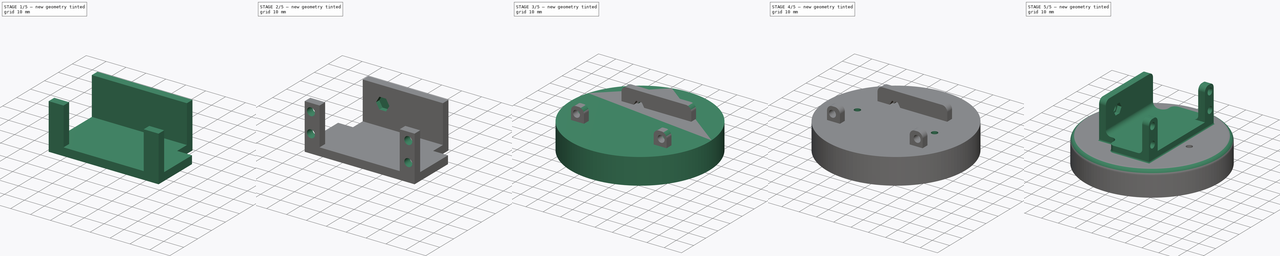
[diagram: build sequence overview — one tinted view per stage of 5, left to right]
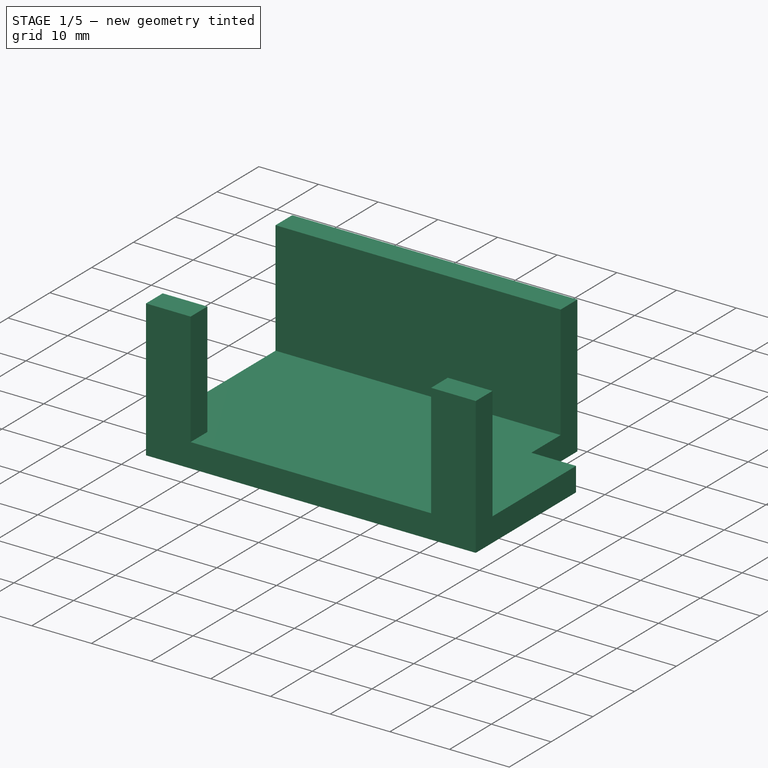
[diagram: stage 1 of 5 — iso view after this stage's code; geometry added in this stage tinted green]
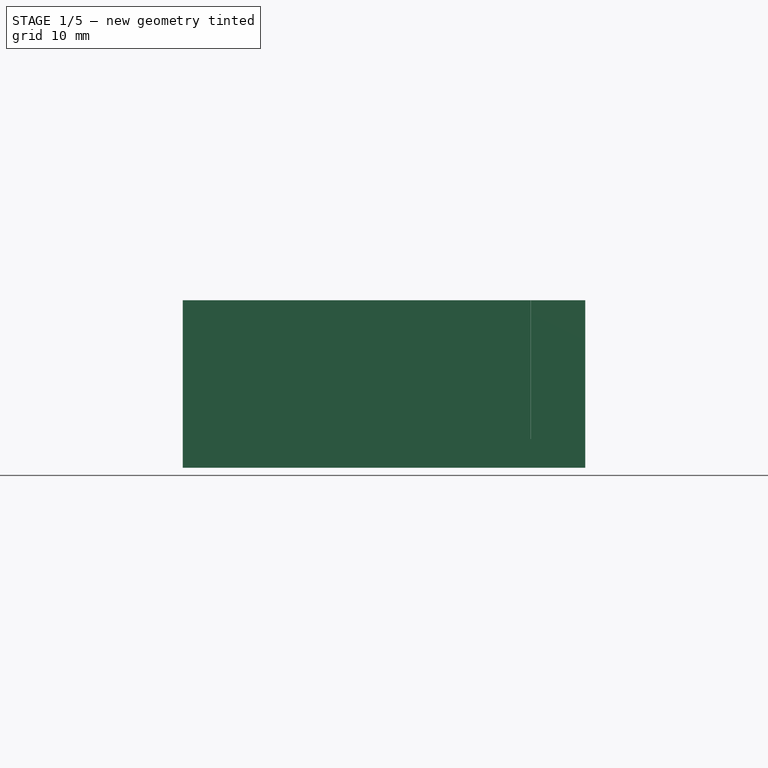
[diagram: stage 1 of 5 — front view after this stage's code; geometry added in this stage tinted green]
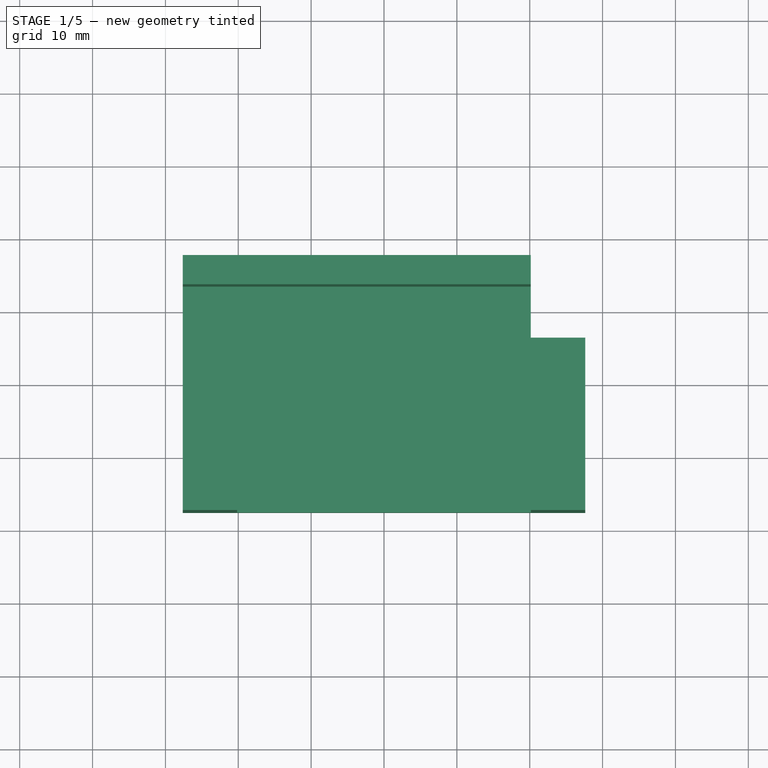
[diagram: stage 1 of 5 — top view after this stage's code; geometry added in this stage tinted green]
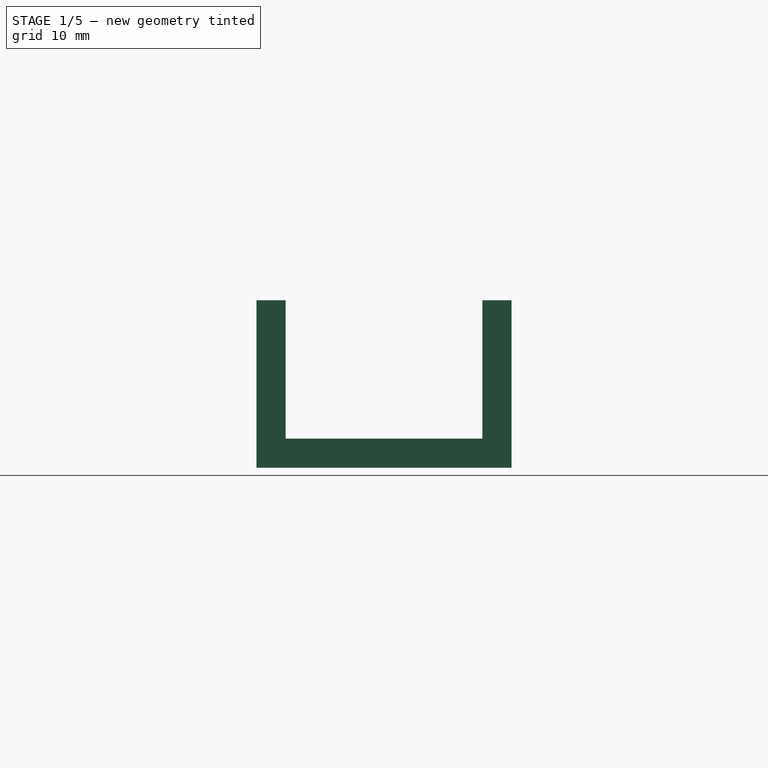
[diagram: stage 1 of 5 — right view after this stage's code; geometry added in this stage tinted green]
FCSTD DOCUMENT  (FreeCAD 0.17R13519 (Git))
Label: forbase
License: CreativeCommons Attribution-ShareAlike
LicenseURL: http://creativecommons.org/licenses/by-sa/4.0/
objects: Sketcher::SketchObject×10, PartDesign::Pocket×8, PartDesign::Fillet×4, PartDesign::Pad×2, PartDesign::Body×2, PartDesign::Mirrored×1, PartDesign::Boolean×1
note: 38 computed .brp shape members not serialized (recipe doc carries the construction recipe); baked Part::Feature solids carry a one-line shape summary decoded from their .brp

FEATURE [Sketcher::SketchObject] Sketch005
  MapMode = 5
  Placement = pos=(0,0,0) rot=(0.57735,0.57735,0.57735;2.0944rad)
  Support = -> [YZ_Plane001]
  sketch-geometry (8):
    g0: LineSegment StartX=-17.5 StartY=23 StartZ=0 EndX=-17.5 EndY=0 EndZ=0
    g1: LineSegment StartX=-17.5 StartY=0 StartZ=0 EndX=17.5 EndY=0 EndZ=0
    g2: LineSegment StartX=17.5 StartY=0 StartZ=0 EndX=17.5 EndY=23 EndZ=0
    g3: LineSegment StartX=17.5 StartY=23 StartZ=0 EndX=13.5 EndY=23 EndZ=0
    g4: LineSegment StartX=13.5 StartY=23 StartZ=0 EndX=13.5 EndY=4 EndZ=0
    g5: LineSegment StartX=13.5 StartY=4 StartZ=0 EndX=-13.5 EndY=4 EndZ=0
    g6: LineSegment StartX=-13.5 StartY=4 StartZ=0 EndX=-13.5 EndY=23 EndZ=0
    g7: LineSegment StartX=-13.5 StartY=23 StartZ=0 EndX=-17.5 EndY=23 EndZ=0
  constraints (24):
    c: PointOnObject(g0,g-1)
    c: Vertical(g0)
    c: Coincident(g0,g1)
    c: PointOnObject(g1,g-1)
    c: Coincident(g1,g2)
    c: Vertical(g2)
    c: Coincident(g2,g3)
    c: Horizontal(g3)
    c: Coincident(g3,g4)
    c: Vertical(g4)
    c: Coincident(g4,g5)
    c: Horizontal(g5)
    c: Coincident(g5,g6)
    c: Vertical(g6)
    c: Coincident(g6,g7)
    c: Coincident(g7,g0)
    c: Horizontal(g7)
    c: Symmetric(g0,g1,g-2)
    c: Equal(g7,g3)
    c: DistanceX(g7,g7) = 4
    c: DistanceY(g0,g5) = 4
    c: DistanceX(g1,g1) = 35
    c: Equal(g0,g2)
    c: DistanceY(g0,g0) = 23
FEATURE [PartDesign::Pad] Pad001
  Length = 55.25
  Length2 = 100
  Midplane = true
  Placement = pos=(0,0,0) rot=(0.57735,0.57735,0.57735;2.0944rad)
  Profile = -> Sketch005
  Type = 0
FEATURE [Sketcher::SketchObject] Sketch006
  ExternalGeometry = -> [Pad001]
  MapMode = 5
  Placement = pos=(0,0,23) rot=(0,0,-1;1.5708rad)
  Support = -> [Pad001]
  sketch-geometry (4):
    g0: LineSegment StartX=13.5 StartY=20.15 StartZ=0 EndX=17.5 EndY=20.15 EndZ=0
    g1: LineSegment StartX=17.5 StartY=20.15 StartZ=0 EndX=17.5 EndY=-20.15 EndZ=0
    g2: LineSegment StartX=17.5 StartY=-20.15 StartZ=0 EndX=13.5 EndY=-20.15 EndZ=0
    g3: LineSegment StartX=13.5 StartY=-20.15 StartZ=0 EndX=13.5 EndY=20.15 EndZ=0
  constraints (12):
    c: Coincident(g0,g1)
    c: Coincident(g1,g2)
    c: Coincident(g2,g3)
    c: Coincident(g3,g0)
    c: Horizontal(g0)
    c: Horizontal(g2)
    c: Vertical(g1)
    c: Vertical(g3)
    c: PointOnObject(g0,g-4)
    c: PointOnObject(g1,g-3)
    c: Symmetric(g0,g1,g-1)
    c: DistanceY(g1,g1) = 40.3
FEATURE [PartDesign::Pocket] Pocket003
  BaseFeature = -> Pad001
  Length = 0
  Length2 = 100
  Placement = pos=(0,0,0) rot=(0.57735,0.57735,0.57735;2.0944rad)
  Profile = -> Sketch006
  Type = 3
  UpToFace = -> Pad001 [Face6]
FEATURE [Sketcher::SketchObject] Sketch007
  ExternalGeometry = -> [Pocket003]
  MapMode = 5
  Placement = pos=(0,0,23) rot=(0,0,-1;1.5708rad)
  Support = -> [Pocket003]
  sketch-geometry (4):
    g0: LineSegment StartX=-17.5 StartY=27.625 StartZ=0 EndX=-6.5 EndY=27.625 EndZ=0
    g1: LineSegment StartX=-6.5 StartY=27.625 StartZ=0 EndX=-6.5 EndY=20.145 EndZ=0
    g2: LineSegment StartX=-6.5 StartY=20.145 StartZ=0 EndX=-17.5 EndY=20.145 EndZ=0
    g3: LineSegment StartX=-17.5 StartY=20.145 StartZ=0 EndX=-17.5 EndY=27.625 EndZ=0
  constraints (11):
    c: Coincident(g0,g1)
    c: Coincident(g1,g2)
    c: Coincident(g2,g3)
    c: Coincident(g3,g0)
    c: Horizontal(g0)
    c: Horizontal(g2)
    c: Vertical(g1)
    c: Vertical(g3)
    c: Coincident(g0,g-4)
    c: DistanceY(g3,g3) = 7.48
    c: DistanceX(g0,g0) = 11
FEATURE [PartDesign::Pocket] Pocket004
  BaseFeature = -> Pocket003
  Length = 5
  Length2 = 100
  Placement = pos=(0,0,0) rot=(0.57735,0.57735,0.57735;2.0944rad)
  Profile = -> Sketch007
  Type = 1
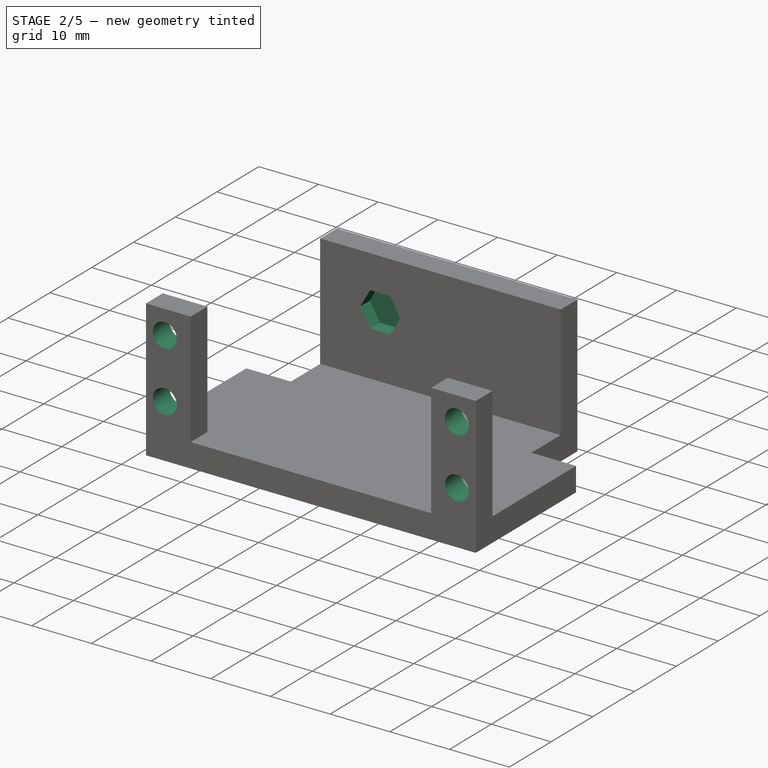
[diagram: stage 2 of 5 — iso view after this stage's code; geometry added in this stage tinted green]
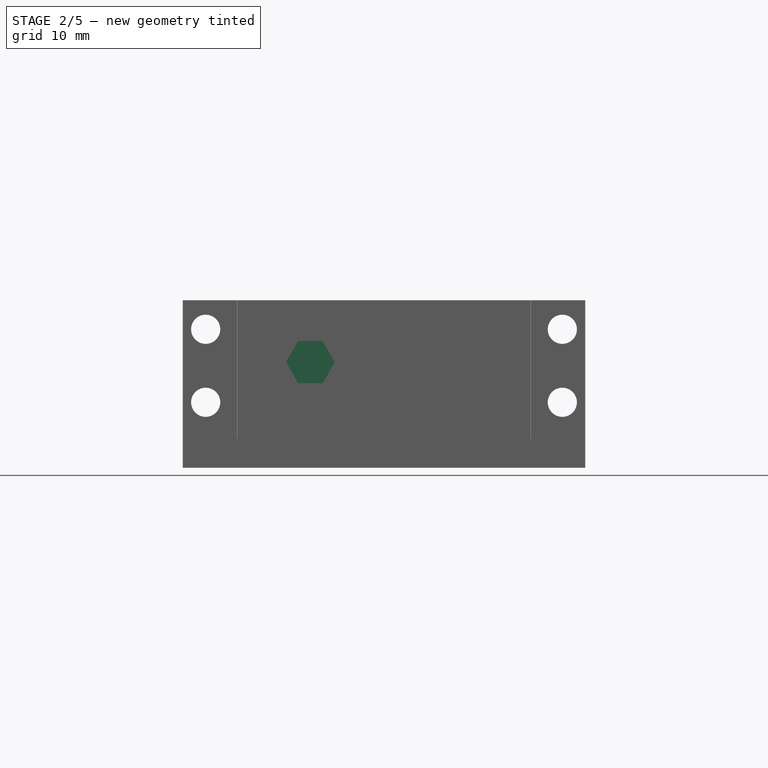
[diagram: stage 2 of 5 — front view after this stage's code; geometry added in this stage tinted green]
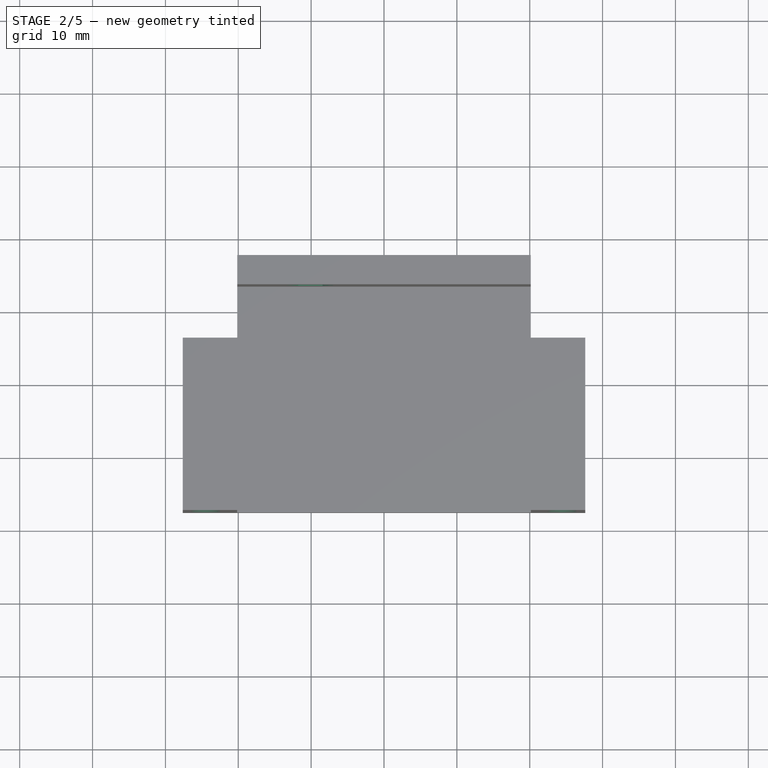
[diagram: stage 2 of 5 — top view after this stage's code; geometry added in this stage tinted green]
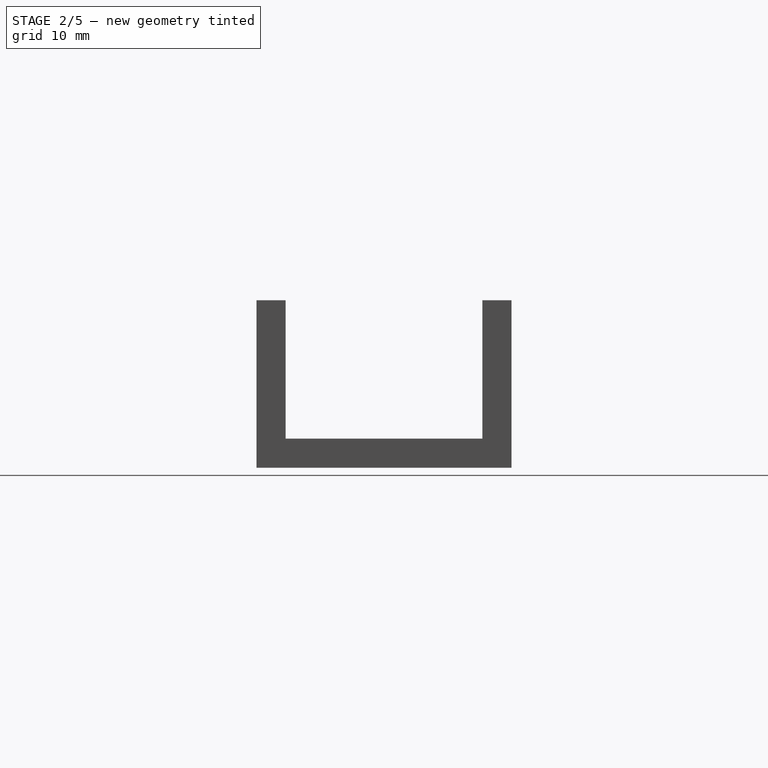
[diagram: stage 2 of 5 — right view after this stage's code; geometry added in this stage tinted green]
FEATURE [PartDesign::Mirrored] Mirrored
  BaseFeature = -> Pocket004
  MirrorPlane = -> YZ_Plane001
  Originals = -> [Pocket004]
  Placement = pos=(0,0,0) rot=(0.57735,0.57735,0.57735;2.0944rad)
FEATURE [Sketcher::SketchObject] Sketch008
  ExternalGeometry = -> [Mirrored]
  MapMode = 5
  Placement = pos=(0,-17.5,0) rot=(-0.57735,-0.57735,0.57735;4.18879rad)
  Support = -> [Mirrored]
  sketch-geometry (5):
    g0: LineSegment [constr] StartX=-23 StartY=-24.475 StartZ=0 EndX=-0.01045 EndY=-24.475 EndZ=0
    g1: Circle CenterX=-19.01 CenterY=-24.475 CenterZ=0 NormalX=0 NormalY=0 NormalZ=1 AngleXU=0 Radius=2
    g2: Circle CenterX=-8.99 CenterY=-24.475 CenterZ=0 NormalX=0 NormalY=0 NormalZ=1 AngleXU=0 Radius=2
    g3: Circle CenterX=-8.99 CenterY=24.475 CenterZ=0 NormalX=0 NormalY=0 NormalZ=1 AngleXU=0 Radius=2
    g4: Circle CenterX=-19.01 CenterY=24.475 CenterZ=0 NormalX=0 NormalY=0 NormalZ=1 AngleXU=0 Radius=2
  constraints (11):
    c: Horizontal(g0)
    c: DistanceY(g-3,g0) = 3.15
    c: PointOnObject(g1,g0)
    c: PointOnObject(g2,g0)
    c: Equal(g1,g2)
    c: Radius(g1) = 2
    c: DistanceX(g-4,g1) = 3.99
    c: DistanceX(g1,g2) = 10.02
    c: PointOnObject(g0,g-3)
    c: Equal(g4,g3)
    c: Radius(g4) = 2
FEATURE [PartDesign::Pocket] Pocket005
  BaseFeature = -> Mirrored
  Length = 5
  Length2 = 100
  Placement = pos=(0,0,0) rot=(0.57735,0.57735,0.57735;2.0944rad)
  Profile = -> Sketch008
  Type = 0
FEATURE [Sketcher::SketchObject] Sketch009
  ExternalGeometry = -> [Pocket005]
  MapMode = 5
  Placement = pos=(0,13.5,0) rot=(-0.57735,-0.57735,0.57735;4.18879rad)
  Support = -> [Pocket005]
  sketch-geometry (7):
    g0: LineSegment StartX=-11.5988 StartY=-11.77 StartZ=0 EndX=-11.5988 EndY=-8.42 EndZ=0
    g1: LineSegment StartX=-11.5988 StartY=-8.42 StartZ=0 EndX=-14.5 EndY=-6.745 EndZ=0
    g2: LineSegment StartX=-14.5 StartY=-6.745 StartZ=0 EndX=-17.4012 EndY=-8.42 EndZ=0
    g3: LineSegment StartX=-17.4012 StartY=-8.42 StartZ=0 EndX=-17.4012 EndY=-11.77 EndZ=0
    g4: LineSegment StartX=-17.4012 StartY=-11.77 StartZ=0 EndX=-14.5 EndY=-13.445 EndZ=0
    g5: LineSegment StartX=-14.5 StartY=-13.445 StartZ=0 EndX=-11.5988 EndY=-11.77 EndZ=0
    g6: Circle [constr] CenterX=-14.5 CenterY=-10.095 CenterZ=0 NormalX=0 NormalY=0 NormalZ=1 AngleXU=0 Radius=3.35
  constraints (17):
    c: Coincident(g0,g1)
    c: Coincident(g1,g2)
    c: Coincident(g2,g3)
    c: Coincident(g3,g4)
    c: Coincident(g4,g5)
    c: Coincident(g5,g0)
    c: Equal(g0, g1-g5) x5
    c: PointOnObject(g0,g6)
    c: PointOnObject(g1,g6)
    c: PointOnObject(g2,g6)
    c: PointOnObject(g3,g6)
    c: PointOnObject(g4,g6)
    c: PointOnObject(g5,g6)
    c: DistanceY(g-4,g6) = 10.05
    c: DistanceX(g-4,g6) = 8.5
    c: Parallel(g3,g-4)
    c: DistanceY(g4,g1) = 6.7
FEATURE [PartDesign::Pocket] Pocket006
  BaseFeature = -> Pocket005
  Length = 2.3
  Length2 = 100
  Placement = pos=(0,0,0) rot=(0.57735,0.57735,0.57735;2.0944rad)
  Profile = -> Sketch009
  Type = 0
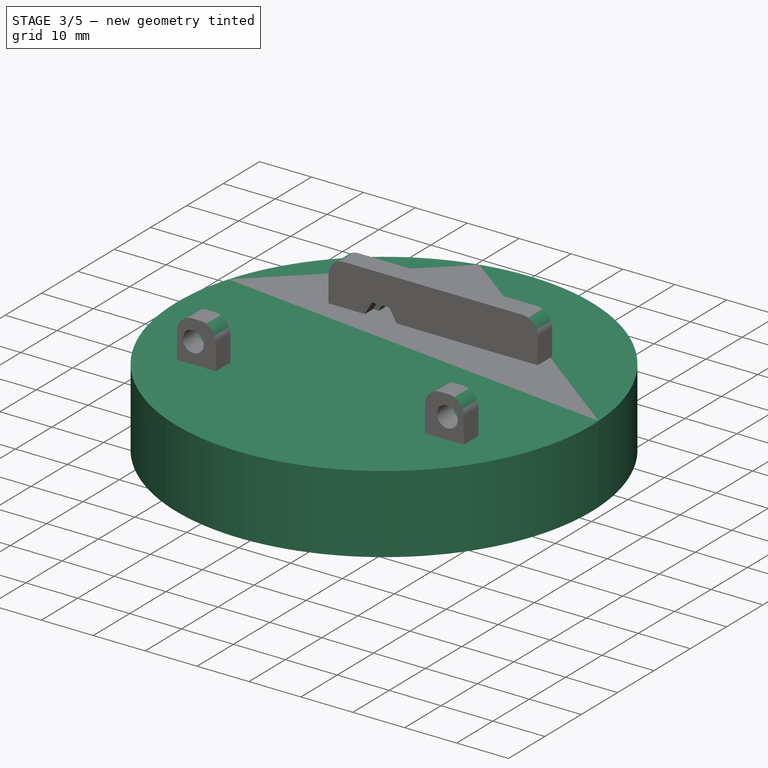
[diagram: stage 3 of 5 — iso view after this stage's code; geometry added in this stage tinted green]
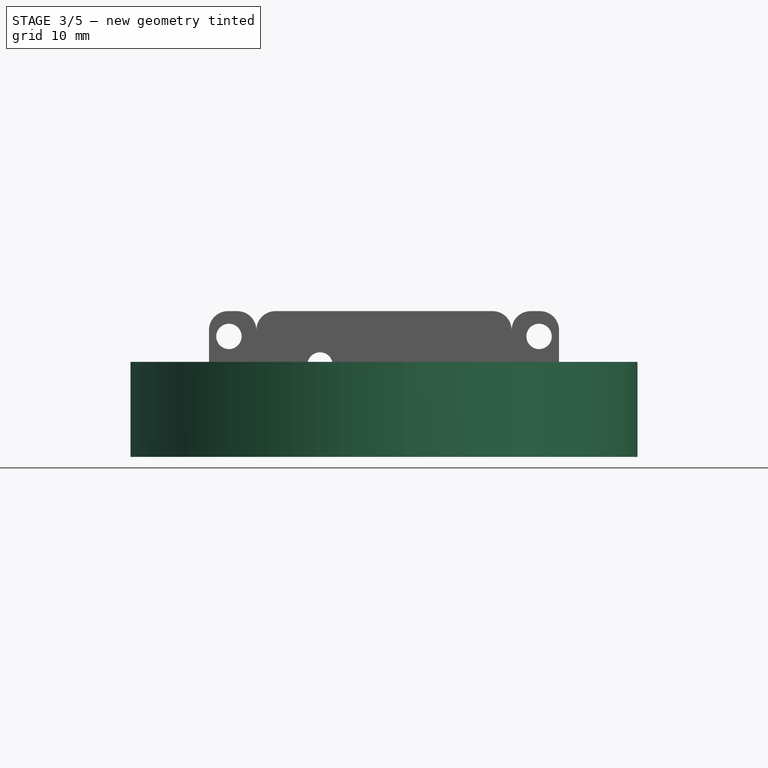
[diagram: stage 3 of 5 — front view after this stage's code; geometry added in this stage tinted green]
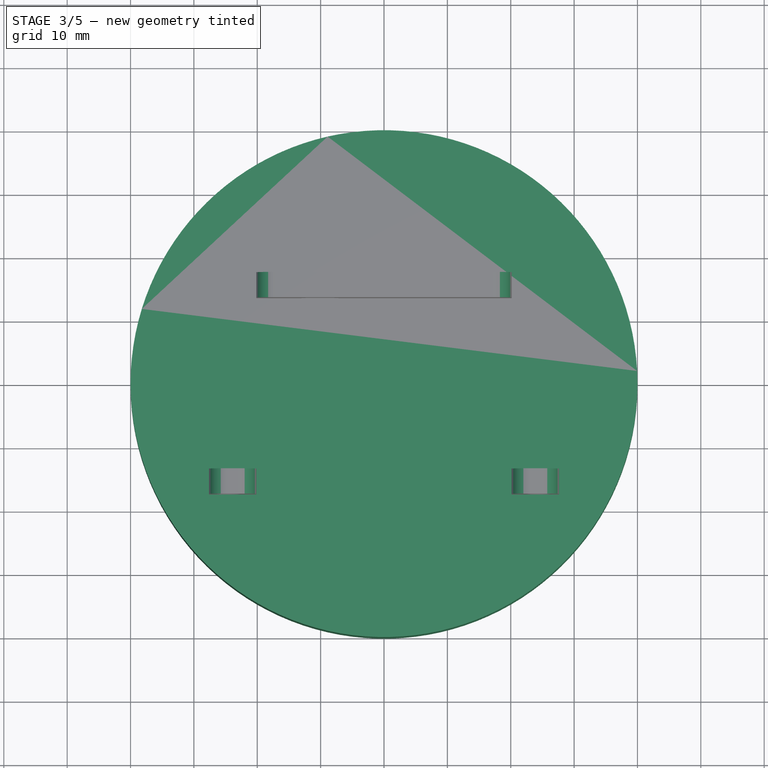
[diagram: stage 3 of 5 — top view after this stage's code; geometry added in this stage tinted green]
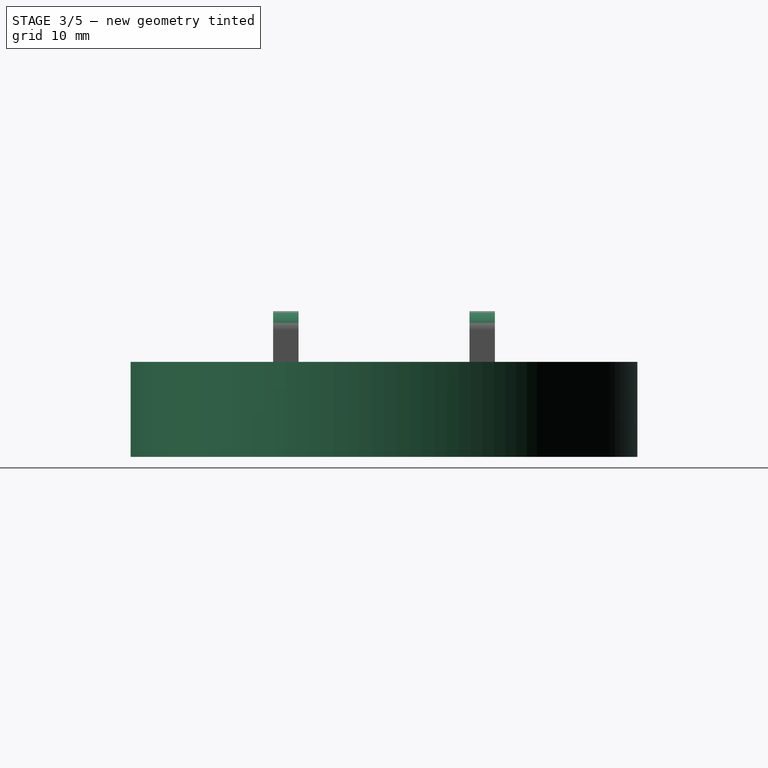
[diagram: stage 3 of 5 — right view after this stage's code; geometry added in this stage tinted green]
FEATURE [Sketcher::SketchObject] Sketch
  MapMode = 5
  Support = -> [XY_Plane]
  sketch-geometry (1):
    g0: Circle CenterX=0 CenterY=0 CenterZ=0 NormalX=0 NormalY=0 NormalZ=1 AngleXU=0 Radius=40
  constraints (2):
    c: Coincident(g0,g-1)
    c: Radius(g0) = 40
FEATURE [PartDesign::Pad] Pad
  Length = 15
  Length2 = 100
  Profile = -> Sketch
  Type = 0
FEATURE [Sketcher::SketchObject] Sketch010
  ExternalGeometry = -> [Pocket006]
  MapMode = 5
  Placement = pos=(0,15.8,0) rot=(-0.57735,-0.57735,0.57735;4.18879rad)
  Support = -> [Pocket006]
  sketch-geometry (1):
    g0: Circle CenterX=-14.5 CenterY=-10.095 CenterZ=0 NormalX=0 NormalY=0 NormalZ=1 AngleXU=0 Radius=2
  constraints (3):
    c: DistanceX(g-4,g0) = 8.5
    c: DistanceY(g-4,g0) = 10.05
    c: Radius(g0) = 2
FEATURE [PartDesign::Pocket] Pocket007
  BaseFeature = -> Pocket006
  Length = 5
  Length2 = 100
  Placement = pos=(0,0,0) rot=(0.57735,0.57735,0.57735;2.0944rad)
  Profile = -> Sketch010
  Type = 2
FEATURE [PartDesign::Fillet] Fillet001
  Base = -> Pocket007 [Edge18,Edge13,Edge34,Edge28,Edge60,Edge31,Edge54,Edge16,Edge52,Edge61,Edge49]
  BaseFeature = -> Pocket007
  Placement = pos=(0,0,0) rot=(0.57735,0.57735,0.57735;2.0944rad)
  Radius = 3
FEATURE [PartDesign::Fillet] Fillet002
  Base = -> Fillet001 [Edge61,Edge65]
  BaseFeature = -> Fillet001
  Placement = pos=(0,0,0) rot=(0.57735,0.57735,0.57735;2.0944rad)
  Radius = 2.5
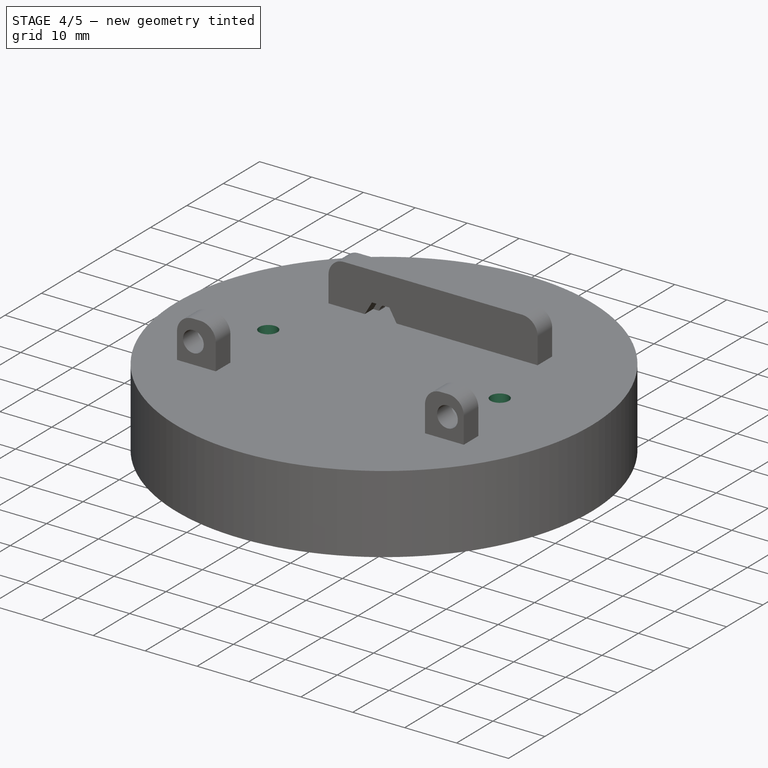
[diagram: stage 4 of 5 — iso view after this stage's code; geometry added in this stage tinted green]
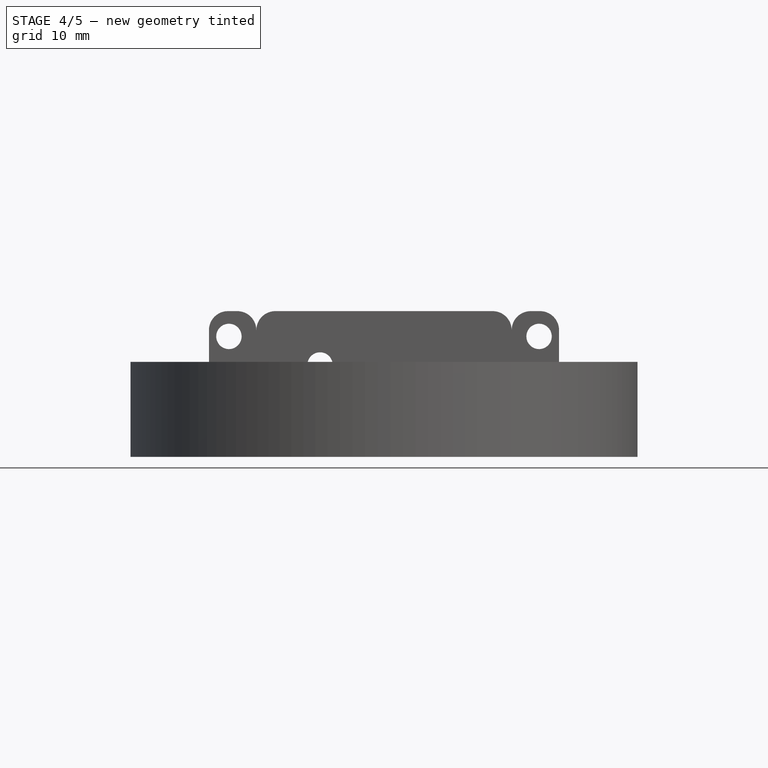
[diagram: stage 4 of 5 — front view after this stage's code; geometry added in this stage tinted green]
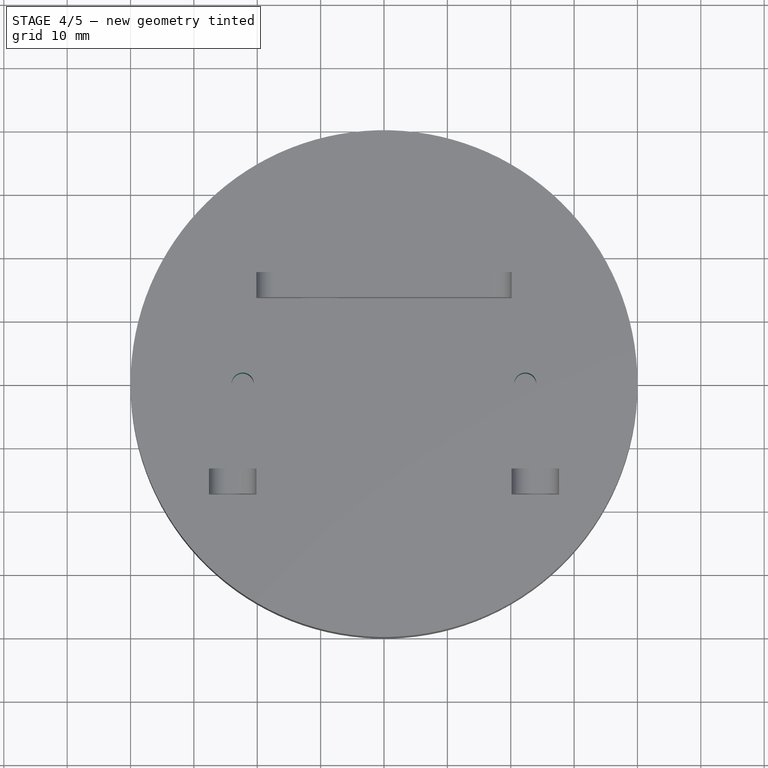
[diagram: stage 4 of 5 — top view after this stage's code; geometry added in this stage tinted green]
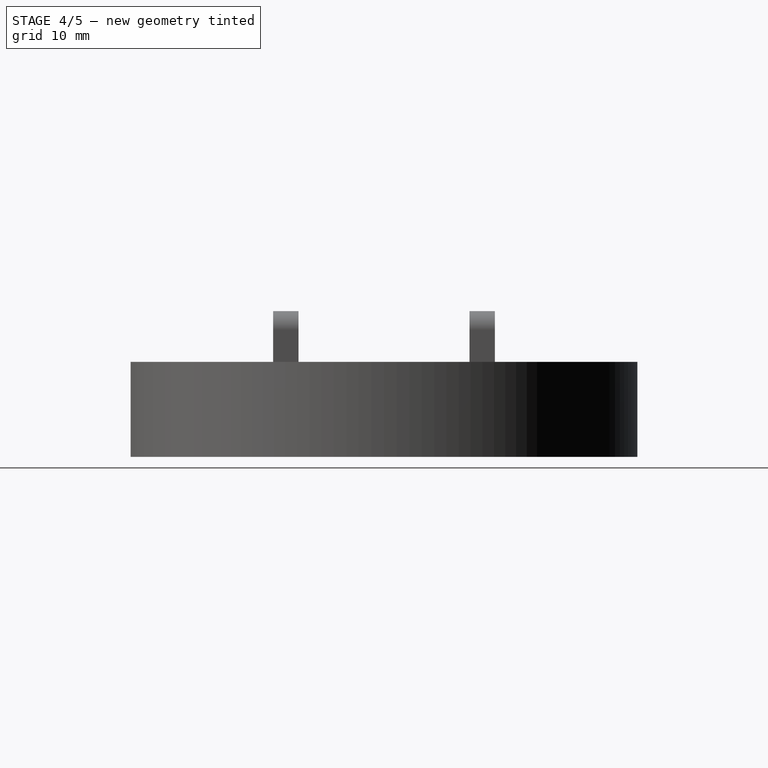
[diagram: stage 4 of 5 — right view after this stage's code; geometry added in this stage tinted green]
FEATURE [Sketcher::SketchObject] Sketch001
  MapMode = 5
  Placement = pos=(0,0,0) rot=(1,0,0;3.14159rad)
  Support = -> [Pad]
  sketch-geometry (7):
    g0: LineSegment StartX=2.875 StartY=-4.97965 StartZ=0 EndX=5.75 EndY=0 EndZ=0
    g1: LineSegment StartX=5.75 StartY=0 StartZ=0 EndX=2.875 EndY=4.97965 EndZ=0
    g2: LineSegment StartX=2.875 StartY=4.97965 StartZ=0 EndX=-2.875 EndY=4.97965 EndZ=0
    g3: LineSegment StartX=-2.875 StartY=4.97965 StartZ=0 EndX=-5.75 EndY=0 EndZ=0
    g4: LineSegment StartX=-5.75 StartY=0 StartZ=0 EndX=-2.875 EndY=-4.97965 EndZ=0
    g5: LineSegment StartX=-2.875 StartY=-4.97965 StartZ=0 EndX=2.875 EndY=-4.97965 EndZ=0
    g6: Circle [constr] CenterX=0 CenterY=0 CenterZ=0 NormalX=0 NormalY=0 NormalZ=1 AngleXU=0 Radius=5.75
  constraints (16):
    c: Coincident(g0,g1)
    c: Coincident(g1,g2)
    c: Coincident(g2,g3)
    c: Coincident(g3,g4)
    c: Coincident(g4,g5)
    c: Coincident(g5,g0)
    c: Equal(g0, g1-g5) x5
    c: PointOnObject(g0,g6)
    c: PointOnObject(g1,g6)
    c: PointOnObject(g2,g6)
    c: PointOnObject(g3,g6)
    c: PointOnObject(g4,g6)
    c: PointOnObject(g5,g6)
    c: Coincident(g6,g-1)
    c: PointOnObject(g3,g-1)
    c: DistanceX(g-1,g0) = 5.75
FEATURE [PartDesign::Pocket] Pocket
  BaseFeature = -> Pad
  Length = 3.5
  Length2 = 100
  Profile = -> Sketch001
  Type = 0
FEATURE [Sketcher::SketchObject] Sketch002
  MapMode = 5
  Placement = pos=(0,0,3.5) rot=(1,0,0;3.14159rad)
  Support = -> [Pocket]
  sketch-geometry (1):
    g0: Circle CenterX=0 CenterY=0 CenterZ=0 NormalX=0 NormalY=0 NormalZ=1 AngleXU=0 Radius=3.25
  constraints (2):
    c: Coincident(g0,g-1)
    c: Radius(g0) = 3.25
FEATURE [PartDesign::Pocket] Pocket001
  BaseFeature = -> Pocket
  Length = 8.5
  Length2 = 100
  Profile = -> Sketch002
  Type = 0
FEATURE [Sketcher::SketchObject] Sketch003
  MapMode = 5
  Placement = pos=(0,0,15) rot=(0,0,1;0rad)
  Support = -> [Pocket001]
  sketch-geometry (2):
    g0: Circle CenterX=22.3 CenterY=0 CenterZ=0 NormalX=0 NormalY=0 NormalZ=1 AngleXU=0 Radius=1.75
    g1: Circle CenterX=-22.3 CenterY=0 CenterZ=0 NormalX=0 NormalY=0 NormalZ=1 AngleXU=0 Radius=1.75
  constraints (6):
    c: PointOnObject(g0,g-1)
    c: PointOnObject(g1,g-1)
    c: Symmetric(g1,g0,g-1)
    c: DistanceX(g-1,g0) = 22.3
    c: Equal(g0,g1)
    c: Radius(g0) = 1.75
FEATURE [PartDesign::Pocket] Pocket002
  BaseFeature = -> Pocket001
  Length = 0
  Length2 = 100
  Profile = -> Sketch003
  Type = 1
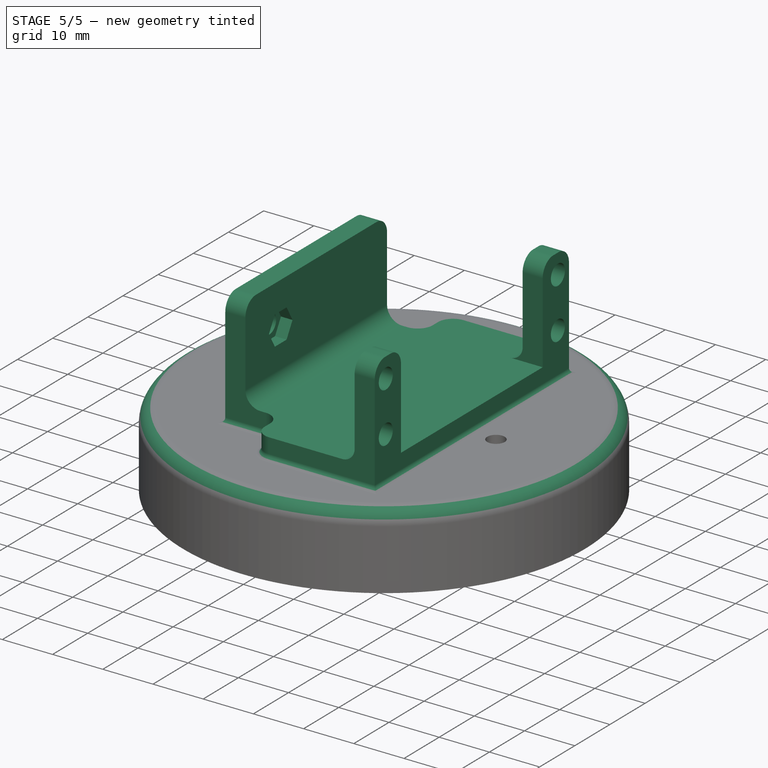
[diagram: stage 5 of 5 — iso view after this stage's code; geometry added in this stage tinted green]
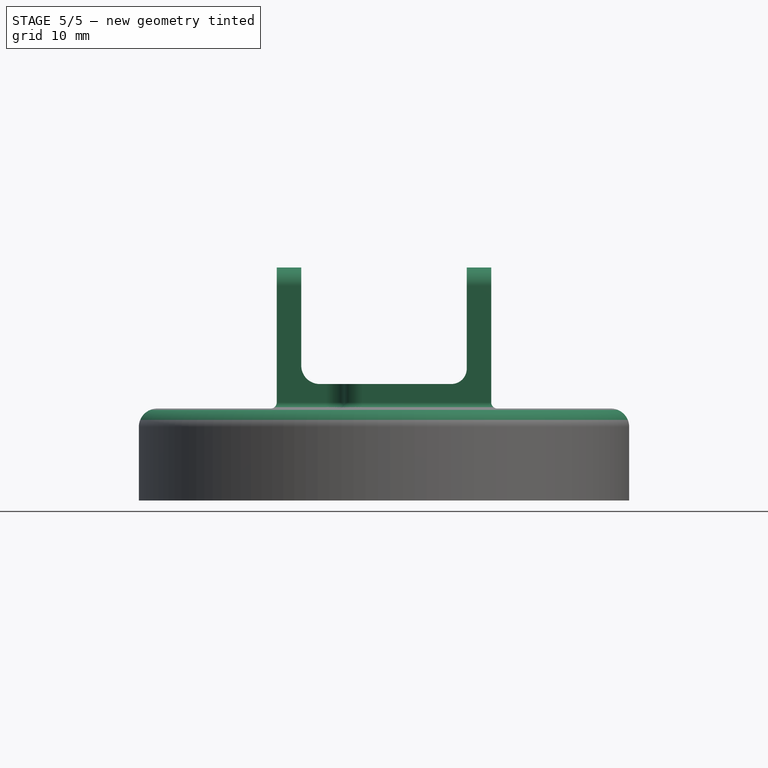
[diagram: stage 5 of 5 — front view after this stage's code; geometry added in this stage tinted green]
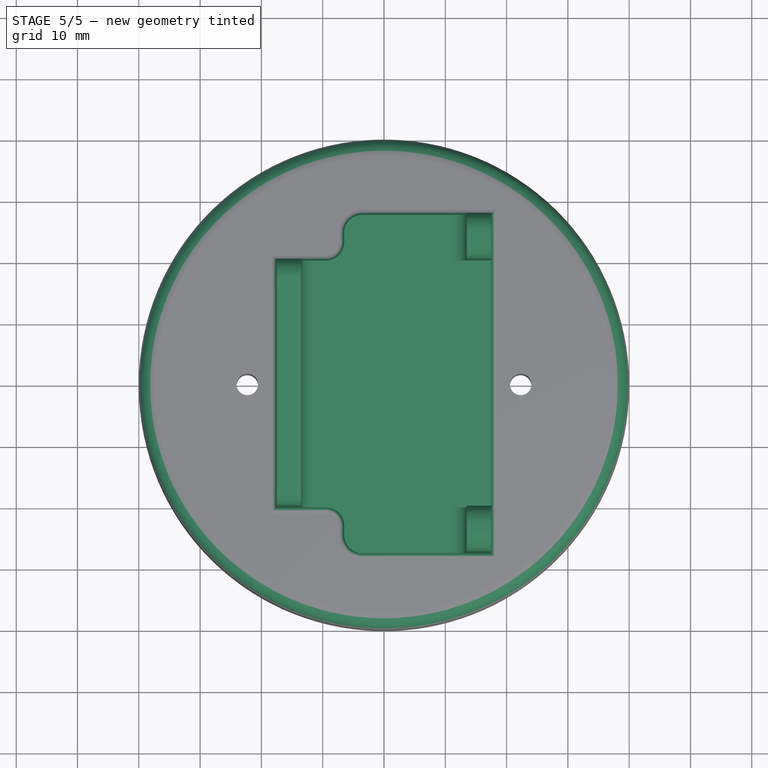
[diagram: stage 5 of 5 — top view after this stage's code; geometry added in this stage tinted green]
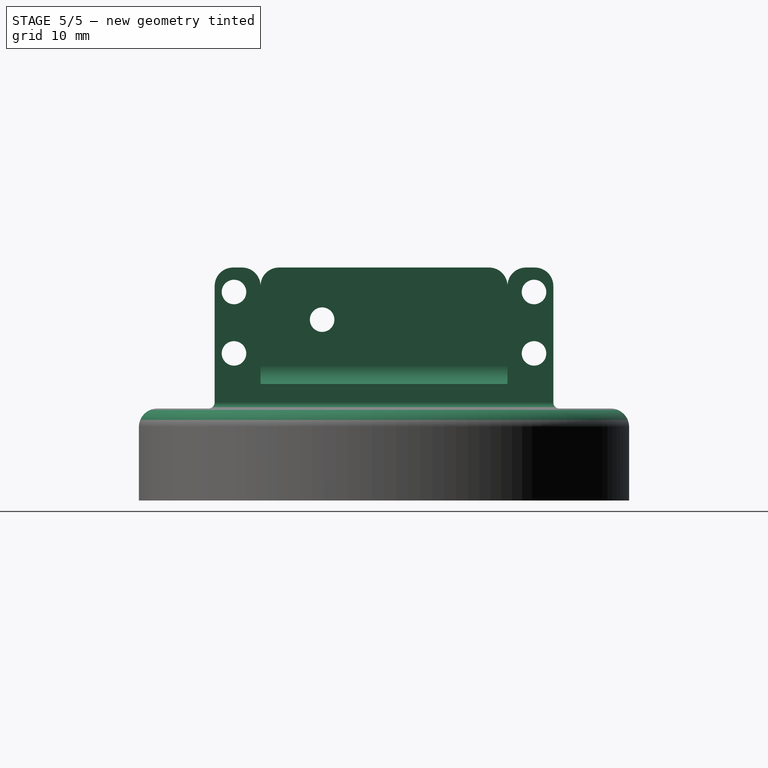
[diagram: stage 5 of 5 — right view after this stage's code; geometry added in this stage tinted green]
FEATURE [PartDesign::Fillet] Fillet
  Base = -> Pocket002 [Edge3]
  BaseFeature = -> Pocket002
  Radius = 3
FEATURE [PartDesign::Body] Body001
  Group = -> [Sketch005,Pad001,Sketch006,Pocket003,Sketch007,Pocket004,Mirrored,Sketch008,Pocket005,Sketch009,Pocket006,Sketch010,Pocket007,Fillet001,Fillet002]
  Origin = -> Origin001
  Placement = pos=(0,0,15) rot=(0,0,1;1.5708rad)
  Tip = -> Fillet002
FEATURE [PartDesign::Boolean] Boolean
  BaseFeature = -> Fillet
  Group = -> [Body001]
  Type = 0
FEATURE [PartDesign::Fillet] Fillet003
  Base = -> Boolean [Edge15,Edge16,Edge14,Edge21]
  BaseFeature = -> Boolean
  Radius = 1
FEATURE [PartDesign::Body] Body
  Group = -> [Sketch,Pad,Sketch001,Pocket,Sketch002,Pocket001,Sketch003,Pocket002,Fillet,Boolean,Fillet003]
  Origin = -> Origin
  Tip = -> Fillet003
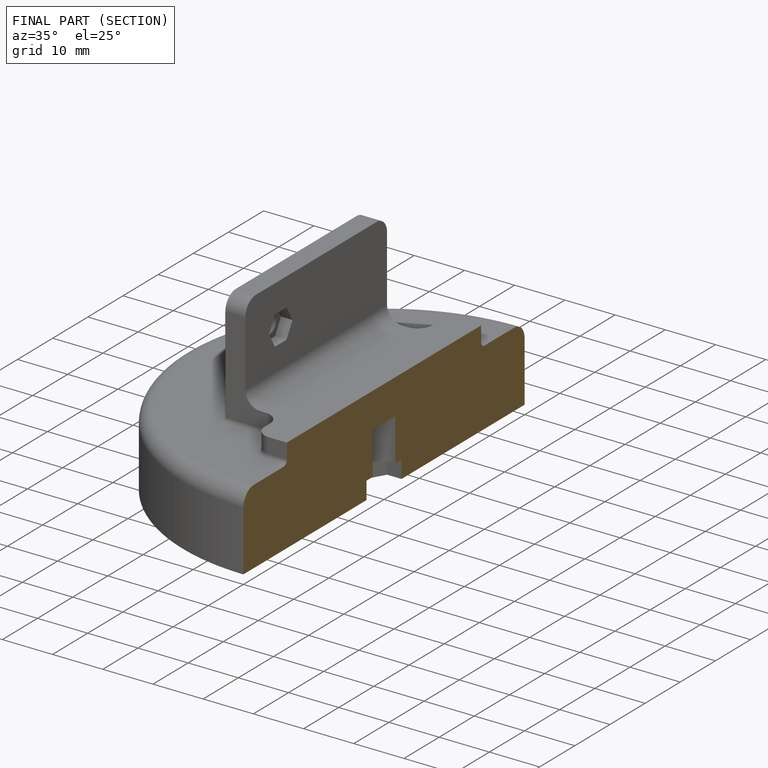
[diagram: finished part — half-section view (interior)]
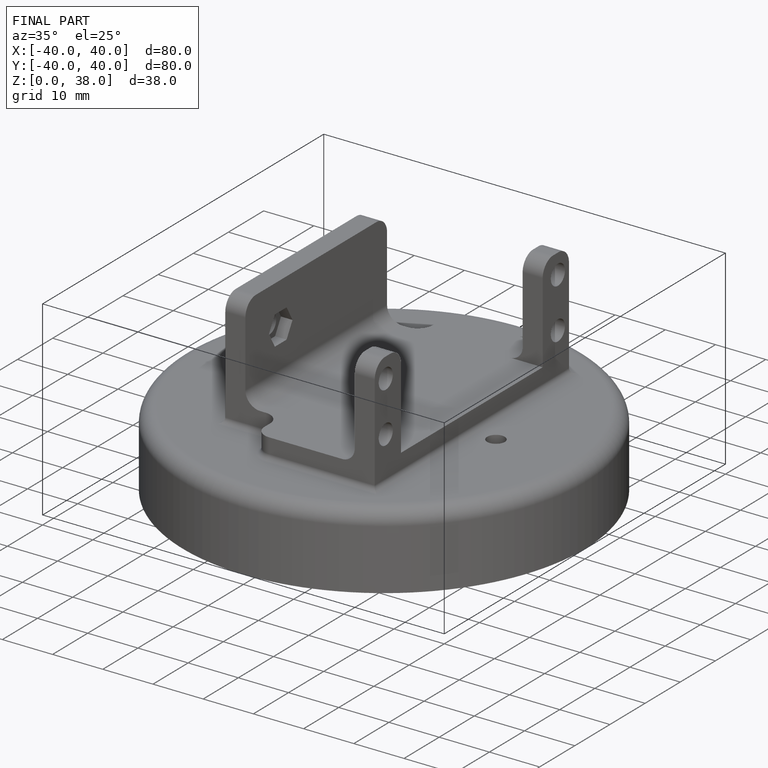
[diagram: finished part — iso view with bounding-box wireframe]
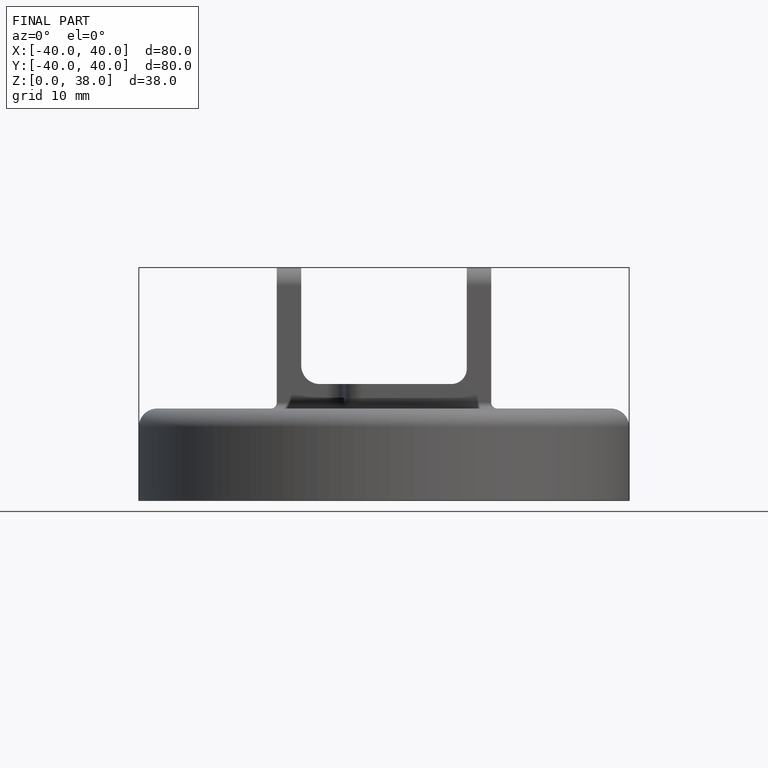
[diagram: finished part — front view with bounding-box wireframe]
